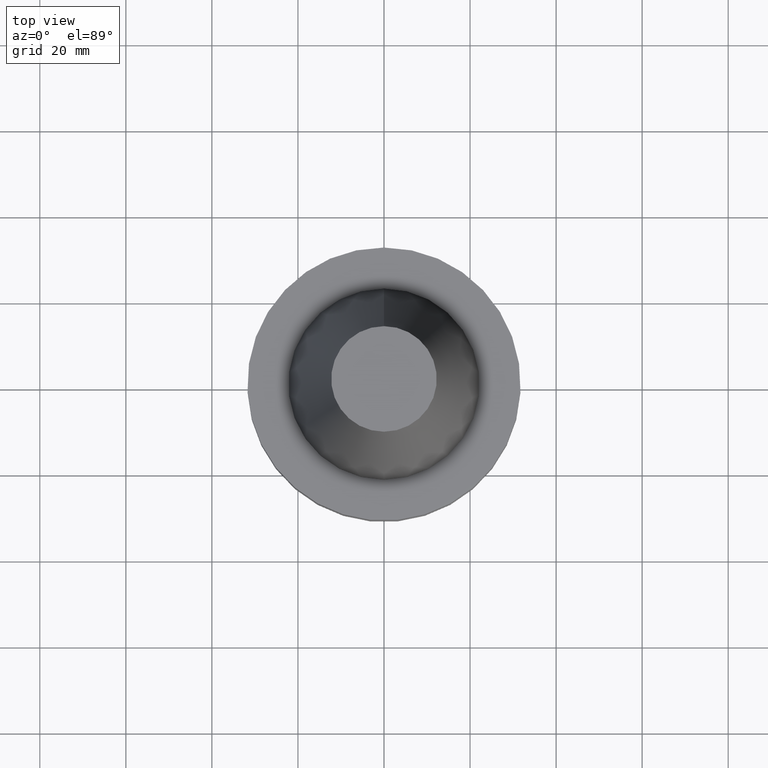
[diagram: clean part render]
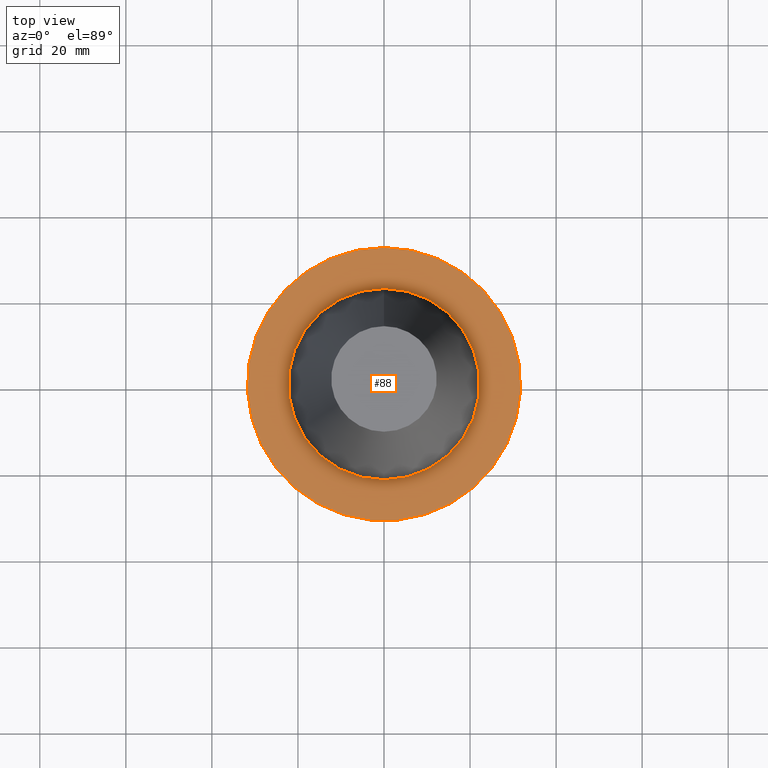
[diagram: same view with one face highlighted and labeled with its STEP entity id]
A machine part, top view. The second image highlights one B-rep face of the part: STEP entity #88.
In plain terms, the highlighted planar face has unit normal (-0, -0, 1).
Its self-contained STEP definition (entity closure, byte-faithful):
#88=ADVANCED_FACE('Unnamed[1]',(#199,#200),#201,.T.);
#112=EDGE_CURVE('Unnamed[1]',#236,#236,#237,.T.);
#114=EDGE_CURVE('Unnamed[1]',#239,#239,#240,.T.);
#199=FACE_OUTER_BOUND('',#337,.T.);
#200=FACE_BOUND('',#338,.T.);
#201=PLANE('',#339);
#236=VERTEX_POINT('',#382);
#237=CIRCLE('',#383,22.225);
#239=VERTEX_POINT('',#386);
#240=CIRCLE('',#387,31.7499999999999);
#337=EDGE_LOOP('',(#477));
#338=EDGE_LOOP('',(#478));
#339=AXIS2_PLACEMENT_3D('',#479,#480,#481);
#382=CARTESIAN_POINT('',(6.12323399572838E-017,22.225,-0.999999999998633));
#383=AXIS2_PLACEMENT_3D('',#518,#519,#520);
#386=CARTESIAN_POINT('',(6.12323399572837E-017,31.7499999999999,-0.999999999998632));
#387=AXIS2_PLACEMENT_3D('',#521,#522,#523);
#477=ORIENTED_EDGE('',*,*,#114,.F.);
#478=ORIENTED_EDGE('',*,*,#112,.T.);
#479=CARTESIAN_POINT('',(6.12323399572838E-017,26.9875,-0.999999999998632));
#480=DIRECTION('',(-6.12323399573677E-017,-1.22464679914735E-016,1.0));
#481=DIRECTION('',(1.23259516440783E-032,-1.0,-1.22464679914735E-016));
#518=CARTESIAN_POINT('',(6.1232339957285E-017,-3.61738383253965E-015,-0.99999999999865));
#519=DIRECTION('',(6.12323399573677E-017,8.51860445125044E-016,-1.0));
#520=DIRECTION('',(-5.69885611028967E-032,1.0,8.51860445125044E-016));
#521=CARTESIAN_POINT('',(6.12323399572859E-017,-3.61738383253964E-015,-0.999999999998664));
#522=DIRECTION('',(6.12323399573677E-017,8.51860445124986E-016,-1.0));
#523=DIRECTION('',(-5.69885611028992E-032,1.0,8.51860445124986E-016));